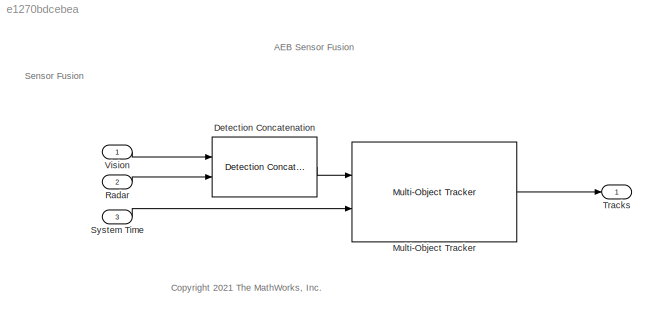
MODEL slx_e1270bdcebea
KIND model
CONFIG AbsTol = auto
CONFIG EnableMultiTasking = off
CONFIG FixedStep = 0.05
CONFIG MaxStep = auto
CONFIG MinStep = auto
CONFIG RelTol = 1e-3
CONFIG SampleTimeConstraint = Unconstrained
CONFIG SolverName = FixedStepAuto
CONFIG StartTime = 0.0
CONFIG StopTime = scenario.StopTime
BLOCK [Reference] Detection Concatenation  REF=trackingutilitieslib/Detection Concatenation
  Ports = [2, 1]
  SourceBlock = trackingutilitieslib/Detection Concatenation
  SourceProductBaseCode = TF,AE,DR,RA,UV,VE
  SourceType = matlabshared.tracking.internal.DetectionConcatenation
BLOCK [Reference] Multi-Object Tracker  REF=drivinglib/Multi-Object Tracker
  Ports = [2, 1]
  SourceBlock = drivinglib/Multi-Object Tracker
  SourceProductBaseCode = DR
  SourceType = multiObjectTracker
BLOCK [Inport] Radar
  BusOutputAsStruct = on
  OutDataTypeStr = Bus: BusRadar
  Port = 2
  PortDimensions = [1 1]
  SampleTime = [Ts,0]
BLOCK [Inport] System Time
  BusOutputAsStruct = on
  OutDataTypeStr = double
  Port = 3
  PortDimensions = [1 1]
  SampleTime = [Ts,0]
BLOCK [Outport] Tracks
  BusOutputAsStruct = on
  OutDataTypeStr = Bus: BusMultiObjectTracker1
  PortDimensions = [1 1]
  SampleTime = [Ts,0]
  SamplingMode = Sample based
  SignalType = real
  VectorParamsAs1DForOutWhenUnconnected = off
BLOCK [Inport] Vision
  BusOutputAsStruct = on
  OutDataTypeStr = Bus: BusVision
  PortDimensions = [1 1]
  SampleTime = [Ts,0]
ANNOTATION (root): AEB Sensor Fusion
ANNOTATION (root): <copyright redacted>
ANNOTATION (root): Sensor Fusion
LINE Detection Concatenation:1 -> Multi-Object Tracker:1
LINE Multi-Object Tracker:1 -> Tracks:1
LINE Radar:1 -> Detection Concatenation:2
LINE System Time:1 -> Multi-Object Tracker:2
LINE Vision:1 -> Detection Concatenation:1
